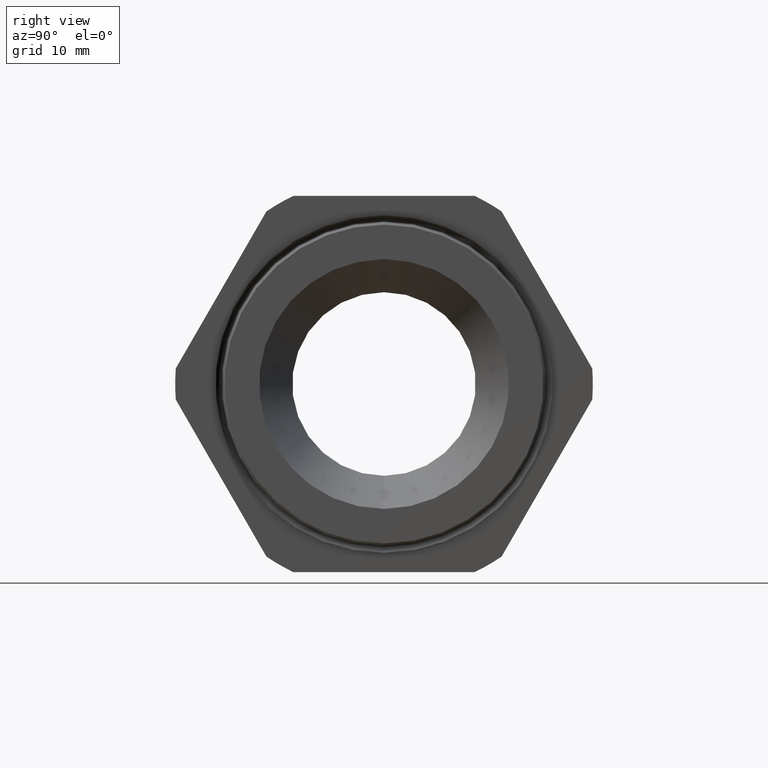
[diagram: clean part render]
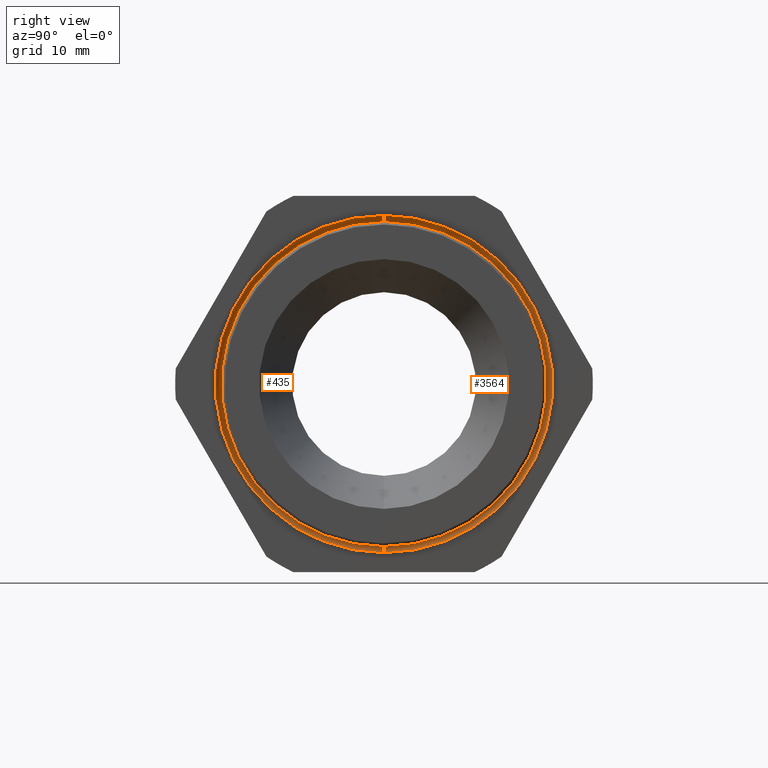
[diagram: same view with one multi-face feature highlighted, each face labeled with its STEP entity id]
A machine part, right view. The highlighted faces form ONE feature: a constant-radius fillet chain: 2 tangent blend faces with common blend radius 0.9525 mm. The faces share edges in the B-rep.
Their STEP definitions:
[1] entity #3564 (Torus):
#419 = VERTEX_POINT ( 'NONE', #1471 ) ;
#421 = EDGE_CURVE ( 'NONE', #3647, #419, #1470, .T. ) ;
#439 = EDGE_CURVE ( 'NONE', #3643, #440, #1503, .T. ) ;
#440 = VERTEX_POINT ( 'NONE', #1498 ) ;
#1466 = DIRECTION ( 'NONE',  ( 0.0000000000000000000, 0.0000000000000000000, -1.000000000000000000 ) ) ;
#1467 = DIRECTION ( 'NONE',  ( 0.0000000000000000000, -1.000000000000000000, 0.0000000000000000000 ) ) ;
#1468 = CARTESIAN_POINT ( 'NONE',  ( -0.3089999999999997200, 0.0000000000000000000, -0.8990656650015197400 ) ) ;
#1469 = AXIS2_PLACEMENT_3D ( 'NONE', #1468, #1467, #1466 ) ;
#1470 = CIRCLE ( 'NONE', #1469, 0.03749999999999994300 ) ;
#1471 = CARTESIAN_POINT ( 'NONE',  ( -0.3100000000000000000, 0.0000000000000000000, -0.9365523292969728500 ) ) ;
#1498 = CARTESIAN_POINT ( 'NONE',  ( -0.3100000000000000000, 1.146945812307535500E-016, 0.9365523292969728500 ) ) ;
#1499 = DIRECTION ( 'NONE',  ( 0.0000000000000000000, 1.224646799147353700E-016, 1.000000000000000000 ) ) ;
#1500 = DIRECTION ( 'NONE',  ( 0.0000000000000000000, 1.000000000000000000, -1.224646799147353200E-016 ) ) ;
#1501 = CARTESIAN_POINT ( 'NONE',  ( -0.3089999999999997200, 1.101037888867397800E-016, 0.8990656650015197400 ) ) ;
#1502 = AXIS2_PLACEMENT_3D ( 'NONE', #1501, #1500, #1499 ) ;
#1503 = CIRCLE ( 'NONE', #1502, 0.03749999999999994300 ) ;
#2073 = DIRECTION ( 'NONE',  ( 0.0000000000000000000, 0.0000000000000000000, -1.000000000000000000 ) ) ;
#2074 = DIRECTION ( 'NONE',  ( 1.000000000000000000, 0.0000000000000000000, 0.0000000000000000000 ) ) ;
#2075 = AXIS2_PLACEMENT_3D ( 'NONE', #2082, #2074, #2073 ) ;
#2076 = TOROIDAL_SURFACE ( 'NONE', #2075, 0.8990656650015197400, 0.03749999999999999900 ) ;
#2077 = FACE_OUTER_BOUND ( 'NONE', #3563, .T. ) ;
#2082 = CARTESIAN_POINT ( 'NONE',  ( -0.3089999999999997200, 0.0000000000000000000, 0.0000000000000000000 ) ) ;
#2188 = CARTESIAN_POINT ( 'NONE',  ( -0.3089999999999997200, 0.0000000000000000000, 0.0000000000000000000 ) ) ;
#2227 = CARTESIAN_POINT ( 'NONE',  ( -0.3089999999999997200, 0.0000000000000000000, -0.8615656650015197600 ) ) ;
#2235 = CARTESIAN_POINT ( 'NONE',  ( -0.3089999999999997200, 1.055113633899371900E-016, 0.8615656650015197600 ) ) ;
#2240 = DIRECTION ( 'NONE',  ( 0.0000000000000000000, 0.0000000000000000000, -1.000000000000000000 ) ) ;
#2241 = DIRECTION ( 'NONE',  ( 1.000000000000000000, 0.0000000000000000000, 0.0000000000000000000 ) ) ;
#2242 = AXIS2_PLACEMENT_3D ( 'NONE', #2188, #2241, #2240 ) ;
#2243 = CIRCLE ( 'NONE', #2242, 0.8615656650015197600 ) ;
#3405 = DIRECTION ( 'NONE',  ( 0.0000000000000000000, 0.0000000000000000000, -1.000000000000000000 ) ) ;
#3406 = DIRECTION ( 'NONE',  ( -1.000000000000000000, 0.0000000000000000000, 0.0000000000000000000 ) ) ;
#3407 = CARTESIAN_POINT ( 'NONE',  ( -0.3100000000000000000, 0.0000000000000000000, 0.0000000000000000000 ) ) ;
#3408 = AXIS2_PLACEMENT_3D ( 'NONE', #3407, #3406, #3405 ) ;
#3409 = CIRCLE ( 'NONE', #3408, 0.9365523292969728500 ) ;
#3560 = ORIENTED_EDGE ( 'NONE', *, *, #4336, .F. ) ;
#3561 = ORIENTED_EDGE ( 'NONE', *, *, #421, .T. ) ;
#3562 = ORIENTED_EDGE ( 'NONE', *, *, #3640, .F. ) ;
#3563 = EDGE_LOOP ( 'NONE', ( #3562, #3561, #3560, #3584 ) ) ;
#3564 = ADVANCED_FACE ( 'NONE', ( #2077 ), #2076, .F. ) ;
#3584 = ORIENTED_EDGE ( 'NONE', *, *, #439, .F. ) ;
#3640 = EDGE_CURVE ( 'NONE', #3647, #3643, #2243, .T. ) ;
#3643 = VERTEX_POINT ( 'NONE', #2235 ) ;
#3647 = VERTEX_POINT ( 'NONE', #2227 ) ;
#4336 = EDGE_CURVE ( 'NONE', #440, #419, #3409, .T. ) ;
[2] entity #435 (Torus):
#418 = EDGE_CURVE ( 'NONE', #419, #440, #1476, .T. ) ;
#419 = VERTEX_POINT ( 'NONE', #1471 ) ;
#420 = ORIENTED_EDGE ( 'NONE', *, *, #421, .F. ) ;
#421 = EDGE_CURVE ( 'NONE', #3647, #419, #1470, .T. ) ;
#435 = ADVANCED_FACE ( 'NONE', ( #1509 ), #1508, .F. ) ;
#436 = EDGE_LOOP ( 'NONE', ( #437, #438, #441, #420 ) ) ;
#437 = ORIENTED_EDGE ( 'NONE', *, *, #483, .F. ) ;
#438 = ORIENTED_EDGE ( 'NONE', *, *, #439, .T. ) ;
#439 = EDGE_CURVE ( 'NONE', #3643, #440, #1503, .T. ) ;
#440 = VERTEX_POINT ( 'NONE', #1498 ) ;
#441 = ORIENTED_EDGE ( 'NONE', *, *, #418, .F. ) ;
#483 = EDGE_CURVE ( 'NONE', #3643, #3647, #1605, .T. ) ;
#1466 = DIRECTION ( 'NONE',  ( 0.0000000000000000000, 0.0000000000000000000, -1.000000000000000000 ) ) ;
#1467 = DIRECTION ( 'NONE',  ( 0.0000000000000000000, -1.000000000000000000, 0.0000000000000000000 ) ) ;
#1468 = CARTESIAN_POINT ( 'NONE',  ( -0.3089999999999997200, 0.0000000000000000000, -0.8990656650015197400 ) ) ;
#1469 = AXIS2_PLACEMENT_3D ( 'NONE', #1468, #1467, #1466 ) ;
#1470 = CIRCLE ( 'NONE', #1469, 0.03749999999999994300 ) ;
#1471 = CARTESIAN_POINT ( 'NONE',  ( -0.3100000000000000000, 0.0000000000000000000, -0.9365523292969728500 ) ) ;
#1472 = DIRECTION ( 'NONE',  ( 0.0000000000000000000, 0.0000000000000000000, -1.000000000000000000 ) ) ;
#1473 = DIRECTION ( 'NONE',  ( -1.000000000000000000, 0.0000000000000000000, 0.0000000000000000000 ) ) ;
#1474 = CARTESIAN_POINT ( 'NONE',  ( -0.3100000000000000000, 0.0000000000000000000, 0.0000000000000000000 ) ) ;
#1475 = AXIS2_PLACEMENT_3D ( 'NONE', #1474, #1473, #1472 ) ;
#1476 = CIRCLE ( 'NONE', #1475, 0.9365523292969728500 ) ;
#1498 = CARTESIAN_POINT ( 'NONE',  ( -0.3100000000000000000, 1.146945812307535500E-016, 0.9365523292969728500 ) ) ;
#1499 = DIRECTION ( 'NONE',  ( 0.0000000000000000000, 1.224646799147353700E-016, 1.000000000000000000 ) ) ;
#1500 = DIRECTION ( 'NONE',  ( 0.0000000000000000000, 1.000000000000000000, -1.224646799147353200E-016 ) ) ;
#1501 = CARTESIAN_POINT ( 'NONE',  ( -0.3089999999999997200, 1.101037888867397800E-016, 0.8990656650015197400 ) ) ;
#1502 = AXIS2_PLACEMENT_3D ( 'NONE', #1501, #1500, #1499 ) ;
#1503 = CIRCLE ( 'NONE', #1502, 0.03749999999999994300 ) ;
#1504 = DIRECTION ( 'NONE',  ( 0.0000000000000000000, 0.0000000000000000000, -1.000000000000000000 ) ) ;
#1505 = DIRECTION ( 'NONE',  ( 1.000000000000000000, 0.0000000000000000000, 0.0000000000000000000 ) ) ;
#1506 = CARTESIAN_POINT ( 'NONE',  ( -0.3089999999999997200, 0.0000000000000000000, 0.0000000000000000000 ) ) ;
#1507 = AXIS2_PLACEMENT_3D ( 'NONE', #1506, #1505, #1504 ) ;
#1508 = TOROIDAL_SURFACE ( 'NONE', #1507, 0.8990656650015197400, 0.03749999999999999900 ) ;
#1509 = FACE_OUTER_BOUND ( 'NONE', #436, .T. ) ;
#1601 = DIRECTION ( 'NONE',  ( 0.0000000000000000000, 0.0000000000000000000, -1.000000000000000000 ) ) ;
#1602 = DIRECTION ( 'NONE',  ( 1.000000000000000000, 0.0000000000000000000, 0.0000000000000000000 ) ) ;
#1603 = CARTESIAN_POINT ( 'NONE',  ( -0.3089999999999997200, 0.0000000000000000000, 0.0000000000000000000 ) ) ;
#1604 = AXIS2_PLACEMENT_3D ( 'NONE', #1603, #1602, #1601 ) ;
#1605 = CIRCLE ( 'NONE', #1604, 0.8615656650015197600 ) ;
#2227 = CARTESIAN_POINT ( 'NONE',  ( -0.3089999999999997200, 0.0000000000000000000, -0.8615656650015197600 ) ) ;
#2235 = CARTESIAN_POINT ( 'NONE',  ( -0.3089999999999997200, 1.055113633899371900E-016, 0.8615656650015197600 ) ) ;
#3643 = VERTEX_POINT ( 'NONE', #2235 ) ;
#3647 = VERTEX_POINT ( 'NONE', #2227 ) ;